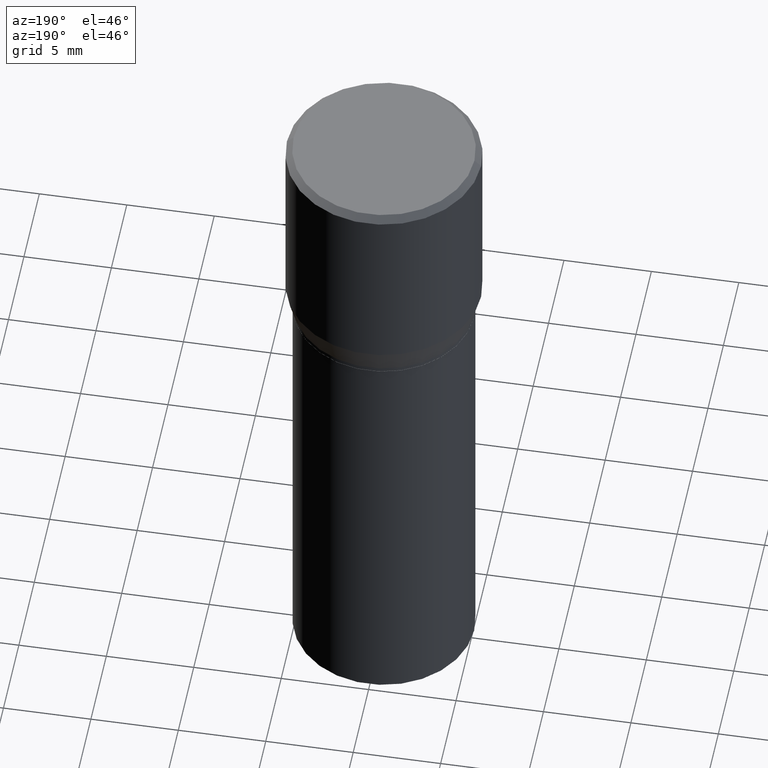
[diagram: clean part render]
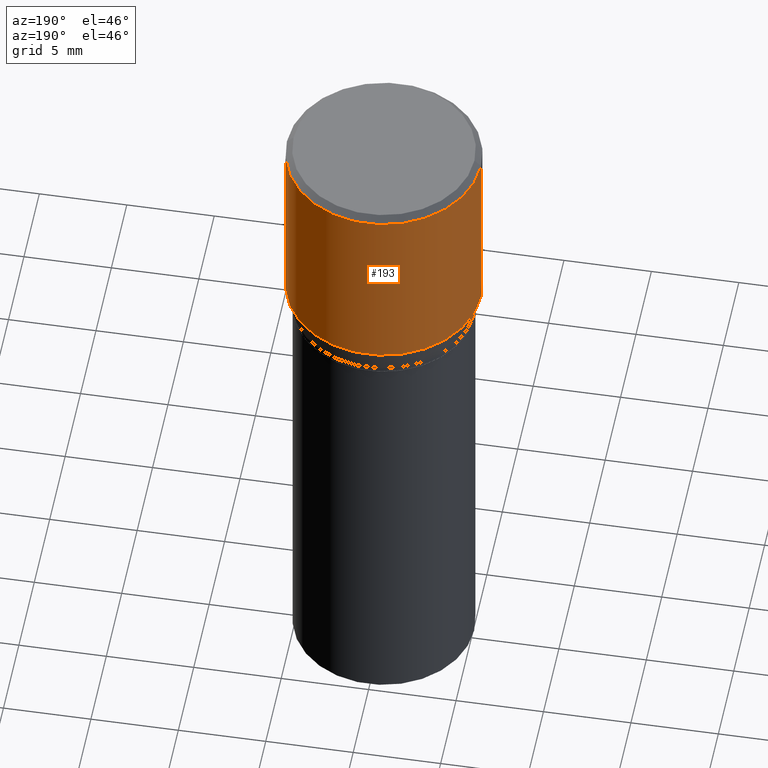
[diagram: same view with one face highlighted and labeled with its STEP entity id]
A machine part, auxiliary view. The second image highlights one B-rep face of the part: STEP entity #193.
In plain terms, the highlighted cylindrical surface (partial cylindrical patch) has radius 5.5562 mm, axis along (-0, 0, 1).
Its self-contained STEP definition (entity closure, byte-faithful):
#2 = AXIS2_PLACEMENT_3D ( 'NONE', #225, #269, #127 ) ;
#9 = EDGE_CURVE ( 'NONE', #20, #426, #421, .T. ) ;
#20 = VERTEX_POINT ( 'NONE', #69 ) ;
#37 = EDGE_CURVE ( 'NONE', #199, #20, #309, .T. ) ;
#40 = EDGE_LOOP ( 'NONE', ( #281, #235, #227, #154 ) ) ;
#69 = CARTESIAN_POINT ( 'NONE',  ( 0.2187500000000000000, -1.579895305826517922E-15, -0.01499999999999999944 ) ) ;
#74 = DIRECTION ( 'NONE',  ( 1.000000000000000000, -6.982962677686266711E-15, 4.876176775795935232E-29 ) ) ;
#92 = VERTEX_POINT ( 'NONE', #224 ) ;
#98 = DIRECTION ( 'NONE',  ( -2.445468806185136877E-29, 3.491481338843145188E-15, 1.000000000000000000 ) ) ;
#113 = DIRECTION ( 'NONE',  ( -2.445468806185136597E-29, 3.491481338843145583E-15, 1.000000000000000000 ) ) ;
#114 = DIRECTION ( 'NONE',  ( -2.445468806185136597E-29, 3.491481338843145583E-15, 1.000000000000000000 ) ) ;
#127 = DIRECTION ( 'NONE',  ( 1.000000000000000000, -6.982962677686266711E-15, 0.000000000000000000 ) ) ;
#142 = DIRECTION ( 'NONE',  ( -2.445468806185136877E-29, 3.491481338843145188E-15, 1.000000000000000000 ) ) ;
#151 = CARTESIAN_POINT ( 'NONE',  ( 0.2187500000000000000, -3.034423404785738170E-15, -0.4315934048615475138 ) ) ;
#154 = ORIENTED_EDGE ( 'NONE', *, *, #37, .F. ) ;
#160 = VECTOR ( 'NONE', #142, 39.37007874015748143 ) ;
#167 = AXIS2_PLACEMENT_3D ( 'NONE', #298, #113, #213 ) ;
#184 = EDGE_CURVE ( 'NONE', #199, #92, #288, .T. ) ;
#188 = FACE_OUTER_BOUND ( 'NONE', #40, .T. ) ;
#193 = ADVANCED_FACE ( 'NONE', ( #188 ), #361, .T. ) ;
#199 = VERTEX_POINT ( 'NONE', #151 ) ;
#209 = CARTESIAN_POINT ( 'NONE',  ( 0.2187500000000000000, -1.527523085743870843E-15, 1.066663669705360885E-29 ) ) ;
#213 = DIRECTION ( 'NONE',  ( 1.000000000000000000, -6.982962677686265133E-15, 0.000000000000000000 ) ) ;
#224 = CARTESIAN_POINT ( 'NONE',  ( -0.2187500000000000000, 4.741191543335144142E-17, -0.4315934048615475138 ) ) ;
#225 = CARTESIAN_POINT ( 'NONE',  ( 3.668203209277705088E-31, -5.237222008264718399E-17, -0.01499999999999999944 ) ) ;
#227 = ORIENTED_EDGE ( 'NONE', *, *, #9, .F. ) ;
#235 = ORIENTED_EDGE ( 'NONE', *, *, #346, .T. ) ;
#269 = DIRECTION ( 'NONE',  ( -2.445468806185136597E-29, 3.491481338843145583E-15, 1.000000000000000000 ) ) ;
#280 = AXIS2_PLACEMENT_3D ( 'NONE', #292, #114, #74 ) ;
#281 = ORIENTED_EDGE ( 'NONE', *, *, #184, .T. ) ;
#288 = CIRCLE ( 'NONE', #167, 0.2187500000000000000 ) ;
#292 = CARTESIAN_POINT ( 'NONE',  ( 0.000000000000000000, 0.000000000000000000, 0.000000000000000000 ) ) ;
#298 = CARTESIAN_POINT ( 'NONE',  ( 1.055448208544146876E-29, -1.506900319041867721E-15, -0.4315934048615475138 ) ) ;
#309 = LINE ( 'NONE', #209, #372 ) ;
#329 = CARTESIAN_POINT ( 'NONE',  ( -0.2187500000000000000, 7.746759649129616577E-16, -0.01499999999999999944 ) ) ;
#346 = EDGE_CURVE ( 'NONE', #92, #426, #434, .T. ) ;
#361 = CYLINDRICAL_SURFACE ( 'NONE', #280, 0.2187500000000000000 ) ;
#372 = VECTOR ( 'NONE', #98, 39.37007874015748143 ) ;
#421 = CIRCLE ( 'NONE', #2, 0.2187500000000000000 ) ;
#426 = VERTEX_POINT ( 'NONE', #329 ) ;
#434 = LINE ( 'NONE', #464, #160 ) ;
#464 = CARTESIAN_POINT ( 'NONE',  ( -0.2187500000000000000, 1.554312234475219157E-15, -1.076017050993260622E-29 ) ) ;